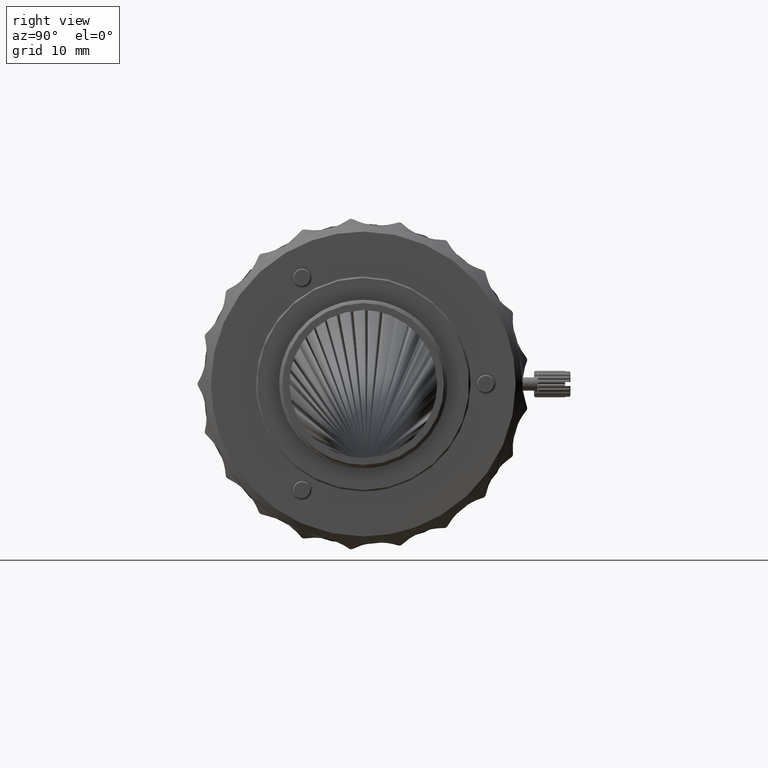
[diagram: clean part render]
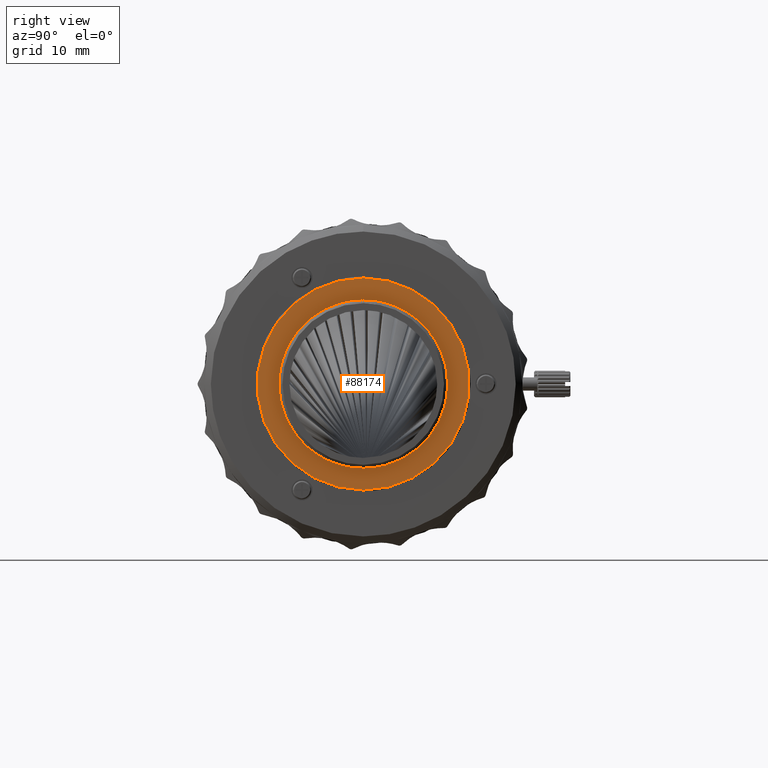
[diagram: same view with one face highlighted and labeled with its STEP entity id]
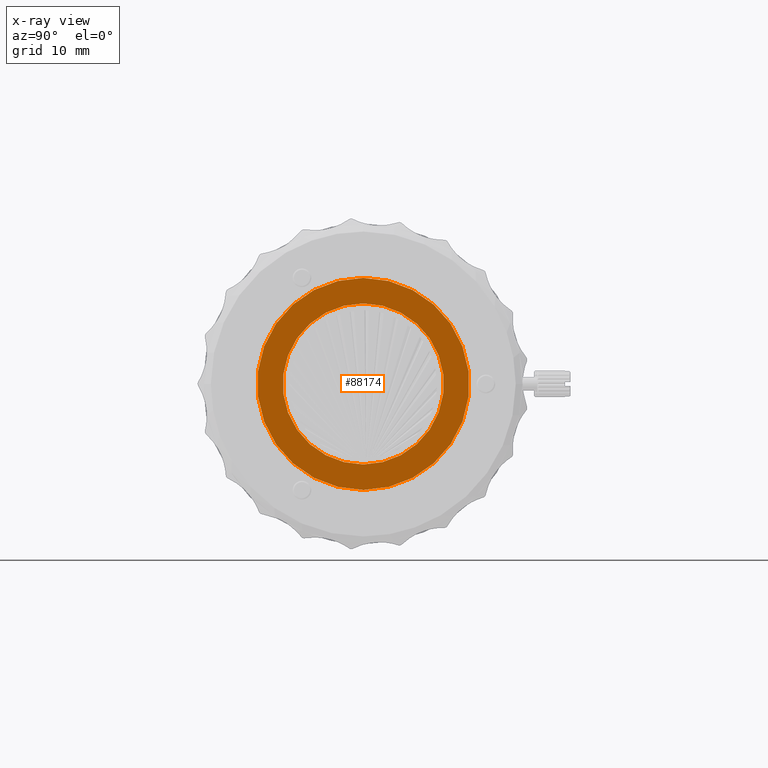
[diagram: x-ray of the same camera — body ghosted, the highlighted face saturated]
A machine part, right view. The second image highlights one B-rep face of the part: STEP entity #88174.
The next image is the same camera in x-ray: the body ghosted, the highlighted face saturated — about 0% of this face is hidden behind the body in this view.
In plain terms, the highlighted planar face has unit normal (-1, 0, 0).
Its self-contained STEP definition (entity closure, byte-faithful):
#1003 = DIRECTION ( 'NONE',  ( -1.000000000000000000, 0.000000000000000000, -0.000000000000000000 ) ) ;
#1443 = VERTEX_POINT ( 'NONE', #46706 ) ;
#2508 = CIRCLE ( 'NONE', #73356, 16.00000000000000355 ) ;
#2947 = ORIENTED_EDGE ( 'NONE', *, *, #41330, .F. ) ;
#10076 = EDGE_CURVE ( 'NONE', #67289, #1443, #93026, .T. ) ;
#10777 = VERTEX_POINT ( 'NONE', #73835 ) ;
#14348 = DIRECTION ( 'NONE',  ( 0.000000000000000000, 0.000000000000000000, -1.000000000000000000 ) ) ;
#19636 = CARTESIAN_POINT ( 'NONE',  ( 72.54599999999999227, 0.000000000000000000, 16.00000000000000355 ) ) ;
#22185 = EDGE_CURVE ( 'NONE', #10777, #38583, #2508, .T. ) ;
#23879 = AXIS2_PLACEMENT_3D ( 'NONE', #79614, #26444, #72227 ) ;
#25377 = CARTESIAN_POINT ( 'NONE',  ( 72.54599999999999227, -16.64000000000000057, 16.65348667387999981 ) ) ;
#26444 = DIRECTION ( 'NONE',  ( -1.000000000000000000, 0.000000000000000000, -0.000000000000000000 ) ) ;
#29613 = CARTESIAN_POINT ( 'NONE',  ( 72.54599999999999227, 0.000000000000000000, 0.000000000000000000 ) ) ;
#31428 = AXIS2_PLACEMENT_3D ( 'NONE', #25377, #41118, #71171 ) ;
#33749 = DIRECTION ( 'NONE',  ( -1.000000000000000000, -0.000000000000000000, 0.000000000000000000 ) ) ;
#38583 = VERTEX_POINT ( 'NONE', #19636 ) ;
#40617 = EDGE_CURVE ( 'NONE', #1443, #67289, #92767, .T. ) ;
#41118 = DIRECTION ( 'NONE',  ( -1.000000000000000000, 0.000000000000000000, 0.000000000000000000 ) ) ;
#41330 = EDGE_CURVE ( 'NONE', #38583, #10777, #75509, .T. ) ;
#44056 = AXIS2_PLACEMENT_3D ( 'NONE', #85492, #33749, #78097 ) ;
#46706 = CARTESIAN_POINT ( 'NONE',  ( 72.54599999999999227, 1.487945860964033786E-15, 12.14999999999999680 ) ) ;
#47418 = EDGE_LOOP ( 'NONE', ( #2947, #58318 ) ) ;
#53032 = ORIENTED_EDGE ( 'NONE', *, *, #40617, .T. ) ;
#53473 = AXIS2_PLACEMENT_3D ( 'NONE', #29613, #1003, #14348 ) ;
#58318 = ORIENTED_EDGE ( 'NONE', *, *, #22185, .F. ) ;
#61393 = CARTESIAN_POINT ( 'NONE',  ( 72.54599999999999227, 0.000000000000000000, -12.14999999999999680 ) ) ;
#63744 = FACE_BOUND ( 'NONE', #72671, .T. ) ;
#67289 = VERTEX_POINT ( 'NONE', #61393 ) ;
#71171 = DIRECTION ( 'NONE',  ( 0.000000000000000000, 1.000000000000000000, 0.000000000000000000 ) ) ;
#72227 = DIRECTION ( 'NONE',  ( 0.000000000000000000, 0.000000000000000000, -1.000000000000000000 ) ) ;
#72671 = EDGE_LOOP ( 'NONE', ( #87285, #53032 ) ) ;
#73356 = AXIS2_PLACEMENT_3D ( 'NONE', #89291, #74999, #89775 ) ;
#73835 = CARTESIAN_POINT ( 'NONE',  ( 72.54599999999999227, 1.971681346627238883E-15, -16.00000000000000355 ) ) ;
#74999 = DIRECTION ( 'NONE',  ( -1.000000000000000000, -0.000000000000000000, 0.000000000000000000 ) ) ;
#75509 = CIRCLE ( 'NONE', #44056, 16.00000000000000355 ) ;
#78097 = DIRECTION ( 'NONE',  ( 0.000000000000000000, 0.000000000000000000, 1.000000000000000000 ) ) ;
#79614 = CARTESIAN_POINT ( 'NONE',  ( 72.54599999999999227, 0.000000000000000000, 0.000000000000000000 ) ) ;
#85492 = CARTESIAN_POINT ( 'NONE',  ( 72.54599999999999227, 0.000000000000000000, 0.000000000000000000 ) ) ;
#85962 = PLANE ( 'NONE',  #31428 ) ;
#87285 = ORIENTED_EDGE ( 'NONE', *, *, #10076, .T. ) ;
#88174 = ADVANCED_FACE ( 'NONE', ( #63744, #94784 ), #85962, .F. ) ;
#89291 = CARTESIAN_POINT ( 'NONE',  ( 72.54599999999999227, 0.000000000000000000, 0.000000000000000000 ) ) ;
#89775 = DIRECTION ( 'NONE',  ( 0.000000000000000000, 0.000000000000000000, 1.000000000000000000 ) ) ;
#92767 = CIRCLE ( 'NONE', #53473, 12.14999999999999680 ) ;
#93026 = CIRCLE ( 'NONE', #23879, 12.14999999999999680 ) ;
#94784 = FACE_OUTER_BOUND ( 'NONE', #47418, .T. ) ;